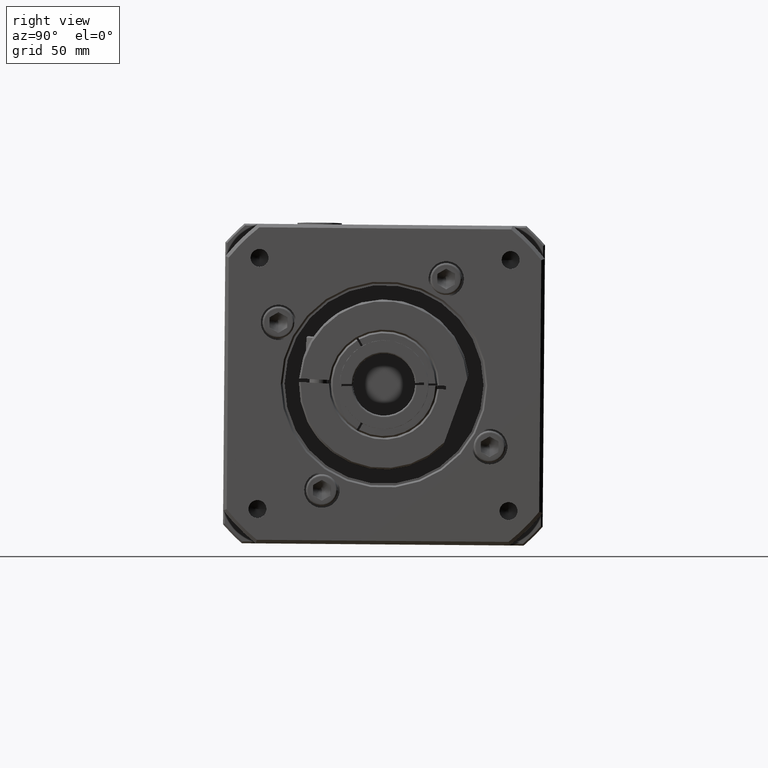
[diagram: clean part render]
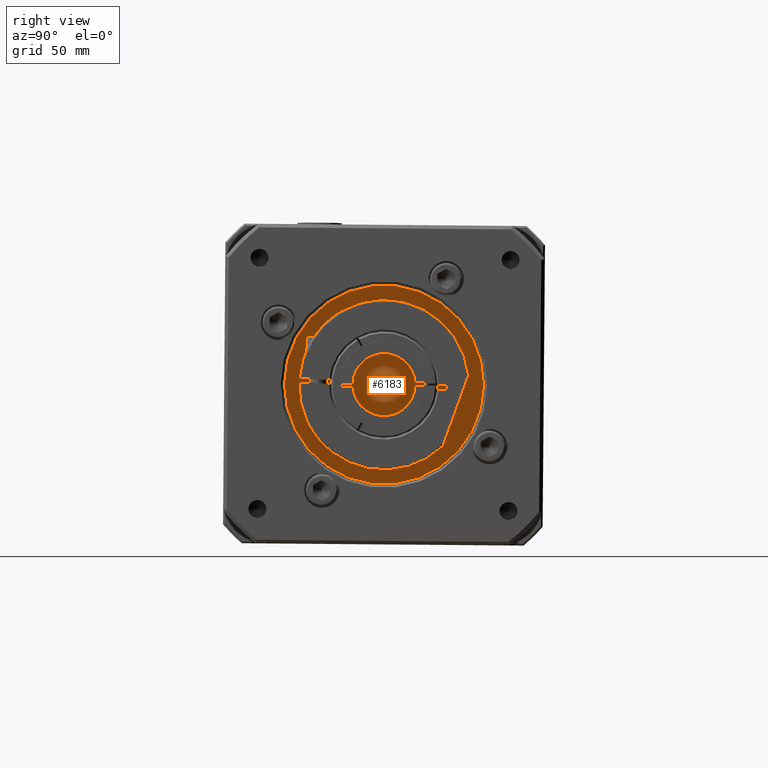
[diagram: same view with one face highlighted and labeled with its STEP entity id]
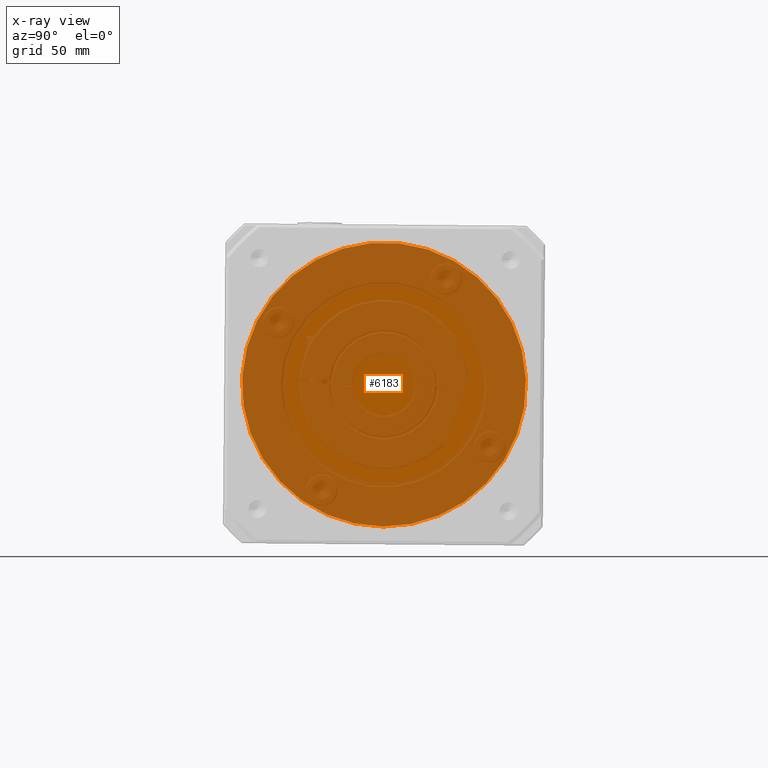
[diagram: x-ray of the same camera — body ghosted, the highlighted face saturated]
A machine part, right view. The second image highlights one B-rep face of the part: STEP entity #6183.
The next image is the same camera in x-ray: the body ghosted, the highlighted face saturated — about 82% of this face is hidden behind the body in this view.
In plain terms, the highlighted planar face has unit normal (1, 0, -0).
Its self-contained STEP definition (entity closure, byte-faithful):
#979=PLANE('',#6793);
#1459=FACE_OUTER_BOUND('',#1942,.T.);
#1942=EDGE_LOOP('',(#4772));
#2468=CIRCLE('',#6794,80.);
#2949=VERTEX_POINT('',#10155);
#3629=EDGE_CURVE('',#2949,#2949,#2468,.T.);
#4772=ORIENTED_EDGE('',*,*,#3629,.F.);
#6183=ADVANCED_FACE('',(#1459),#979,.T.);
#6793=AXIS2_PLACEMENT_3D('',#10154,#8107,#8108);
#6794=AXIS2_PLACEMENT_3D('',#10156,#8109,#8110);
#8107=DIRECTION('center_axis',(1.,1.93538914479471E-16,-4.65376321555618E-16));
#8108=DIRECTION('ref_axis',(0.,-0.00841499871866915,-0.999964593271464));
#8109=DIRECTION('center_axis',(-1.,-1.93538914479471E-16,4.65376321555618E-16));
#8110=DIRECTION('ref_axis',(4.63731214385176E-16,0.00841499871866801,0.999964593271464));
#10154=CARTESIAN_POINT('Origin',(-78.6970715127766,-153.436415388422,49.1925268064302));
#10155=CARTESIAN_POINT('',(-78.6970715127766,-154.109615285915,-30.804640655287));
#10156=CARTESIAN_POINT('Origin',(-78.6970715127766,-153.436415388422,49.1925268064302));